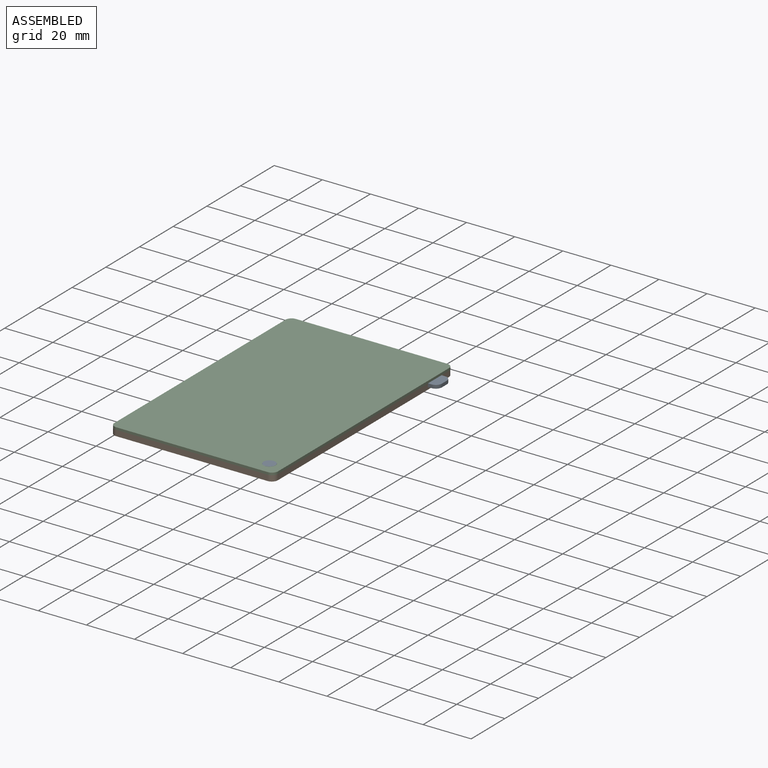
[diagram: assembled view]
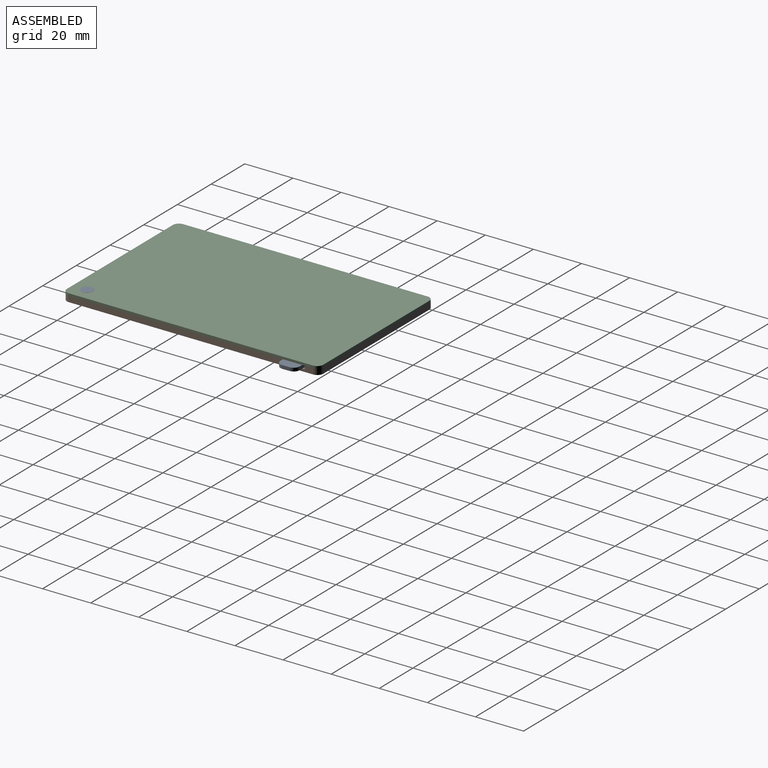
[diagram: assembled view, second angle]
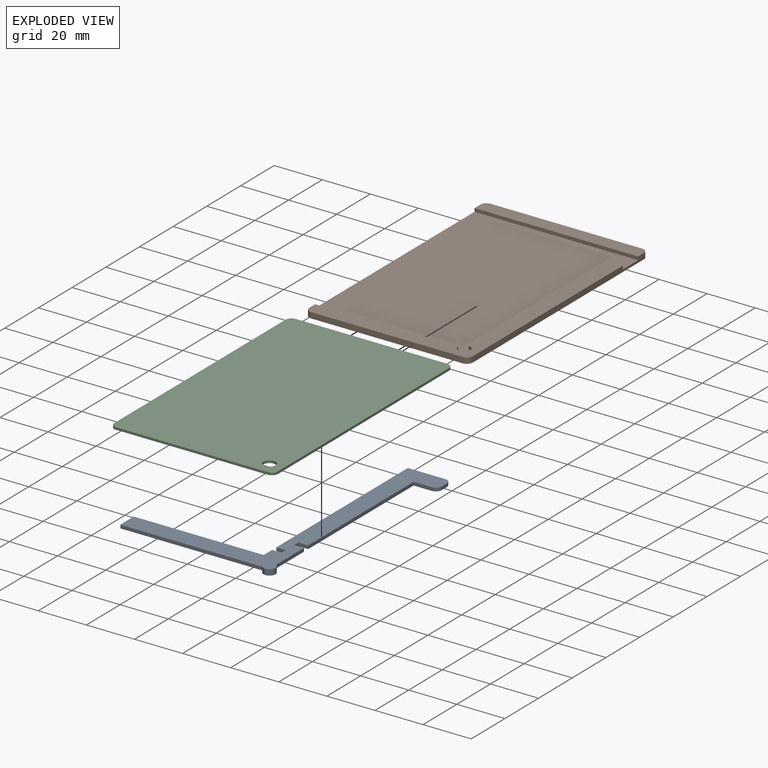
[diagram: exploded view]
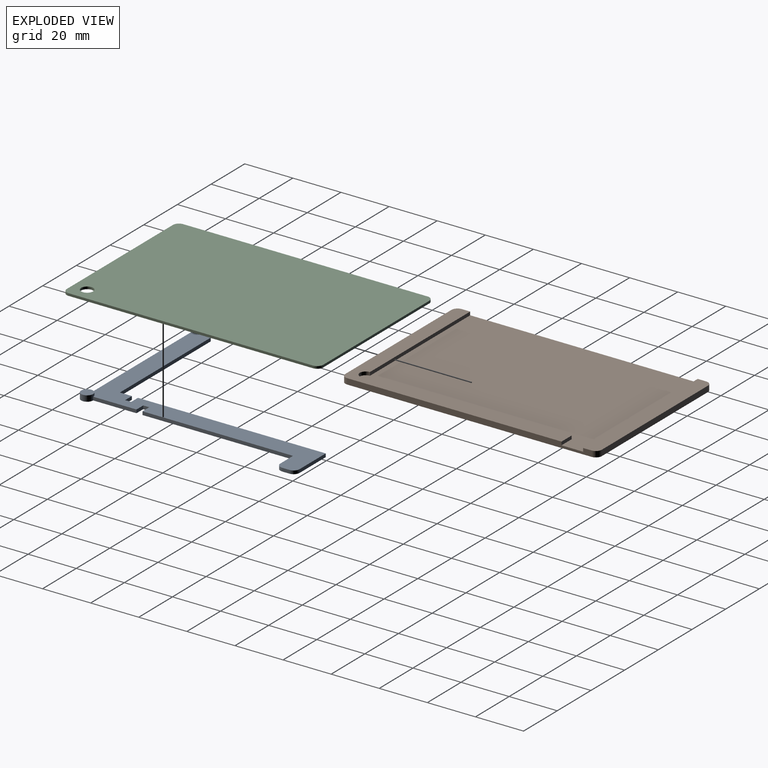
[diagram: exploded view, second angle]
ASSEMBLY  parts=3 mates=2
PART A: 22 faces, bbox 72x96.1x2.4 mm
  f0: plane 59.5x1.4mm, normal (0,-1,0), area 83.3mm2, adj f15,f16,f17,f20
  f1: plane 18x1.4mm, normal (1,0,0), area 25.2mm2, adj f2,f16,f17,f20
  f2: plane 4x1.4mm, normal (0,1,0), area 5.6mm2, adj f1,f3,f16,f17
  f3: plane 2.5x1.4mm, normal (1,0,0), area 3.5mm2, adj f2,f4,f16,f17
  f4: plane 4x1.4mm, normal (0,-1,0), area 5.6mm2, adj f3,f5,f16,f17
  f5: plane 62.6x1.4mm, normal (1,0,0), area 87.6mm2, adj f4,f6,f16,f17
  f6: plane 7.5x1.4mm, normal (0,-1,0), area 10.5mm2, adj f5,f16,f17,f18
  f7: plane 3x1.4mm, normal (1,0,0), area 4.2mm2, adj f16,f17,f18,f19
  f8: plane 15.5x1.4mm, normal (0,1,0), area 21.7mm2, adj f9,f16,f17,f19
  f9: plane 78.1x1.4mm, normal (-1,0,0), area 109.3mm2, adj f8,f10,f16,f17
  f10: plane 4x1.4mm, normal (0,-1,0), area 5.6mm2, adj f9,f11,f16,f17
  f11: plane 2.5x1.4mm, normal (-1,0,0), area 3.5mm2, adj f10,f12,f16,f17
  f12: plane 4x1.4mm, normal (0,1,0), area 5.6mm2, adj f11,f13,f16,f17
  f13: plane 5x1.4mm, normal (-1,0,0), area 7mm2, adj f12,f14,f16,f17
  f14: plane 54x1.4mm, normal (0,1,0), area 75.6mm2, adj f13,f15,f16,f17
  f15: plane 8x1.4mm, normal (-1,0,0), area 11.2mm2, adj f0,f14,f16,f17
  f16: plane 93.6x72mm, normal (0,0,1), area 1233.2mm2, adj f0,f1,f2,f3,f4,f5,f6,f7
  f17: plane 96.1x72mm, normal (0,0,-1), area 1252.8mm2, adj f0,f1,f2,f3,f4,f5,f6,f7
  f18: cylinder r=2.5mm len=2.5mm, axis (0,0,1), area 5.5mm2, adj f6,f7,f16,f17
  f19: cylinder r=2.5mm len=2.5mm, axis (0,0,-1), area 5.5mm2, adj f7,f8,f16,f17
  f20: cylinder r=2.5mm len=5mm, axis (0,0,-1), area 32.2mm2, adj f0,f1,f16,f17,f21
  f21: plane 5x5mm, normal (0,0,1), area 19.6mm2, adj f20
PART B: 17 faces, bbox 68x106.6x2.4 mm
  f0: plane 101.6x2.4mm, normal (1,0,0), area 231.2mm2, adj f2,f3,f4,f6,f9,f12,f14,f15
  f1: plane 101.6x2.4mm, normal (-1,0,0), area 111.4mm2, adj f2,f3,f4,f6,f7,f12,f13,f16
  f2: plane 97.1x68mm, normal (0,0,1), area 5933.9mm2, adj f0,f1,f4,f7,f8,f9,f10
  f3: plane 106.6x68mm, normal (0,0,-1), area 7243.4mm2, adj f0,f1,f5,f11,f13,f14,f15,f16
  f4: plane 68x1.4mm, normal (0,-1,0), area 95.2mm2, adj f0,f1,f2,f6
  f5: plane 63x2.4mm, normal (0,1,0), area 151.2mm2, adj f3,f6,f13,f14
  f6: plane 68x6mm, normal (0,0,1), area 405.3mm2, adj f0,f1,f4,f5,f13,f14
  f7: plane 59.5x1.4mm, normal (0,1,0), area 83.3mm2, adj f1,f2,f8,f12
  f8: cylinder r=2.5mm len=5mm, axis (0,0,-1), area 16.5mm2, adj f2,f7,f10,f12
  f9: plane 6x1.4mm, normal (0,1,0), area 8.4mm2, adj f0,f2,f10,f12
  f10: plane 83.1x1.4mm, normal (-1,0,0), area 116.3mm2, adj f2,f8,f9,f12
  f11: plane 63x2.4mm, normal (0,-1,0), area 151.2mm2, adj f3,f12,f15,f16
  f12: plane 91.6x68mm, normal (0,0,1), area 904.2mm2, adj f0,f1,f7,f8,f9,f10,f11,f15
  f13: cylinder r=2.5mm len=2.5mm, axis (0,0,1), area 9.4mm2, adj f1,f3,f5,f6
  f14: cylinder r=2.5mm len=2.5mm, axis (0,0,-1), area 9.4mm2, adj f0,f3,f5,f6
  f15: cylinder r=2.5mm len=2.5mm, axis (0,0,1), area 9.4mm2, adj f0,f3,f11,f12
  f16: cylinder r=2.5mm len=2.5mm, axis (0,0,-1), area 9.4mm2, adj f1,f3,f11,f12
PART C: 11 faces, bbox 68x106.6x1 mm
  f0: plane 63x1mm, normal (0,1,0), area 63mm2, adj f5,f6,f7,f10
  f1: plane 101.6x1mm, normal (-1,0,0), area 101.6mm2, adj f5,f6,f7,f8
  f2: plane 63x1mm, normal (0,-1,0), area 63mm2, adj f5,f6,f8,f9
  f3: cylinder r=2.5mm len=5mm, axis (0,0,-1), area 15.7mm2, adj f5,f6
  f4: plane 101.6x1mm, normal (1,0,0), area 101.6mm2, adj f5,f6,f9,f10
  f5: plane 106.6x68mm, normal (0,0,1), area 7223.8mm2, adj f0,f1,f2,f3,f4,f7,f8,f9
  f6: plane 106.6x68mm, normal (0,0,-1), area 7223.8mm2, adj f0,f1,f2,f3,f4,f7,f8,f9
  f7: cylinder r=2.5mm len=2.5mm, axis (0,0,1), area 3.9mm2, adj f0,f1,f5,f6
  f8: cylinder r=2.5mm len=2.5mm, axis (0,0,-1), area 3.9mm2, adj f1,f2,f5,f6
  f9: cylinder r=2.5mm len=2.5mm, axis (0,0,1), area 3.9mm2, adj f2,f4,f5,f6
  f10: cylinder r=2.5mm len=2.5mm, axis (0,0,-1), area 3.9mm2, adj f0,f4,f5,f6
PLACE A t=(-4.84,-12.52,1)mm
PLACE B t=(0,1.92,0)mm
PLACE C rot(axis=(0,1,0),180deg) t=(1.2,10.08,3.37)mm
MATE planar A.f0 <-> B.f7  axis (0,-1,0) through (-3.04,-33.02,1.7)mm
MATE cylindrical C.f3 <-> A.f20  axis (0,0,1) through (29.21,-33.02,3.37)mm
